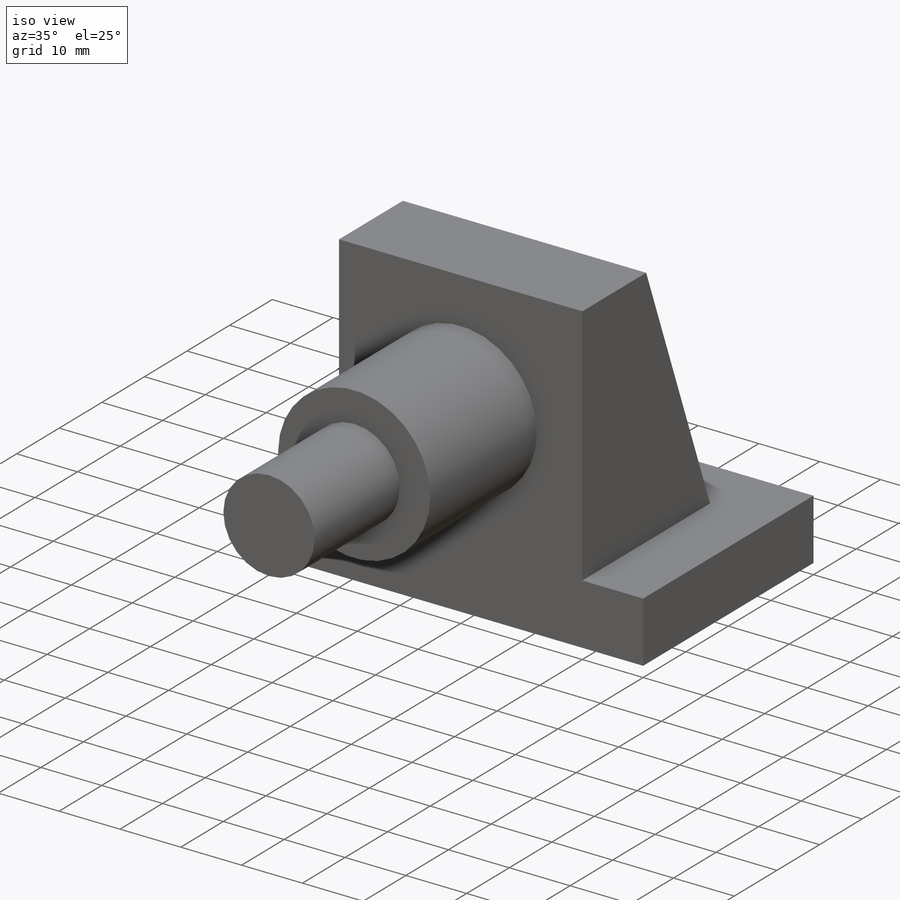
[diagram: iso view]
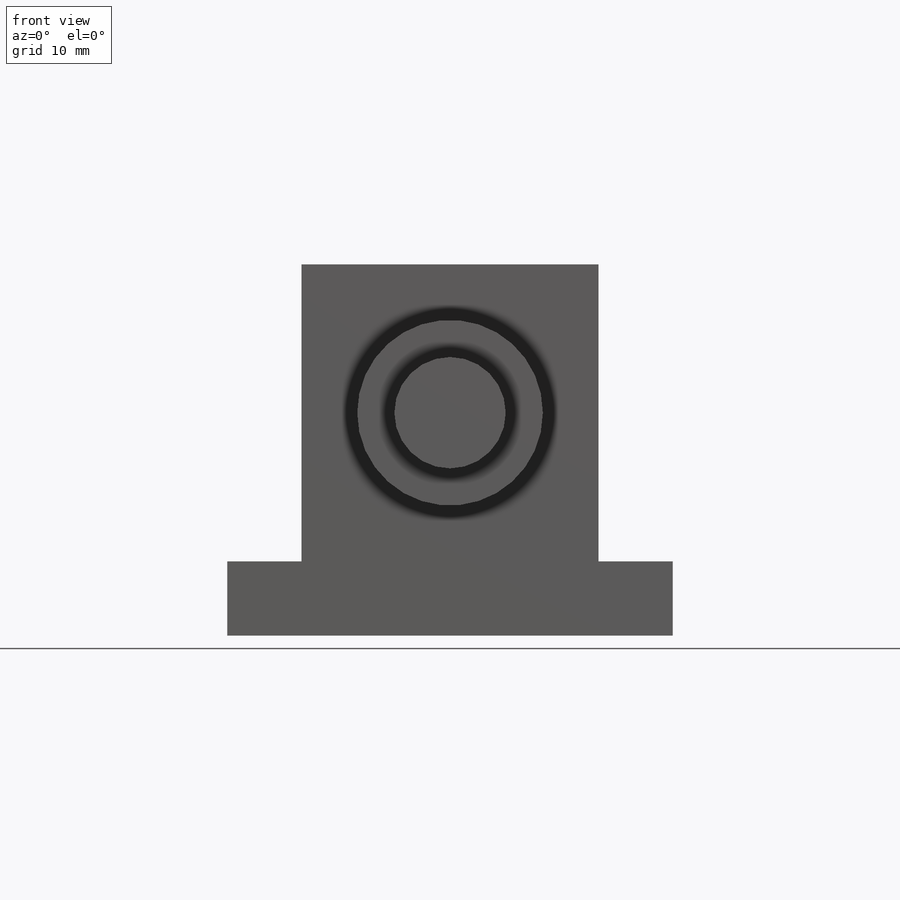
[diagram: front view]
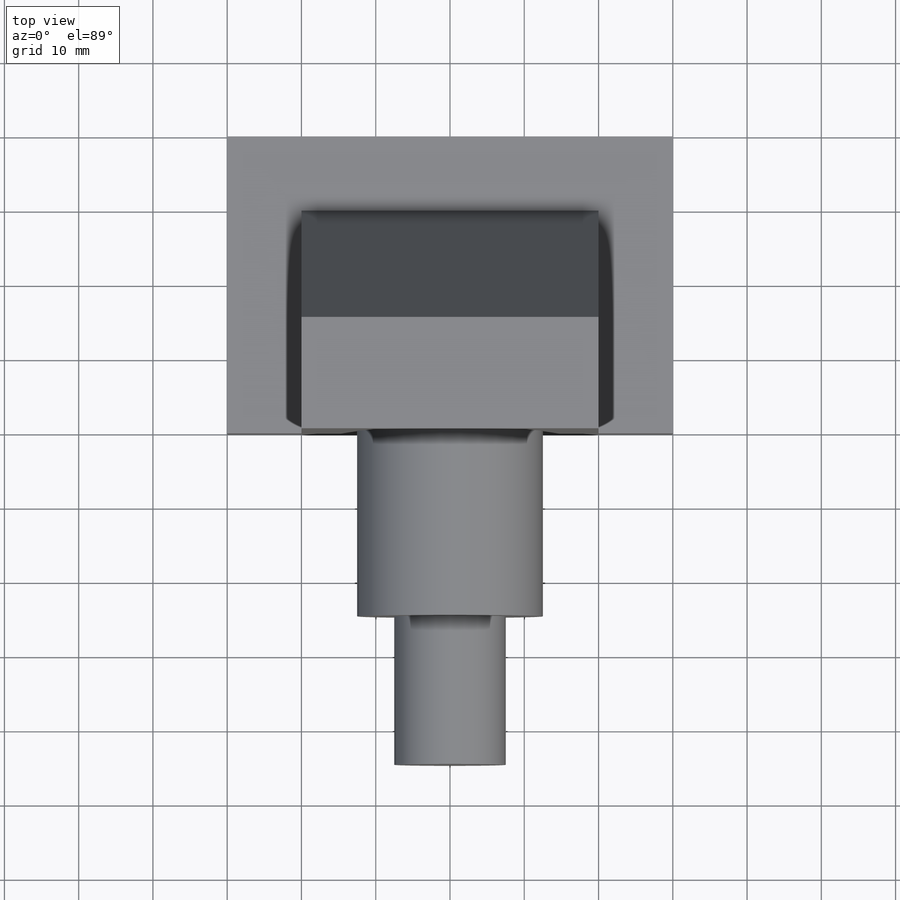
[diagram: top view]
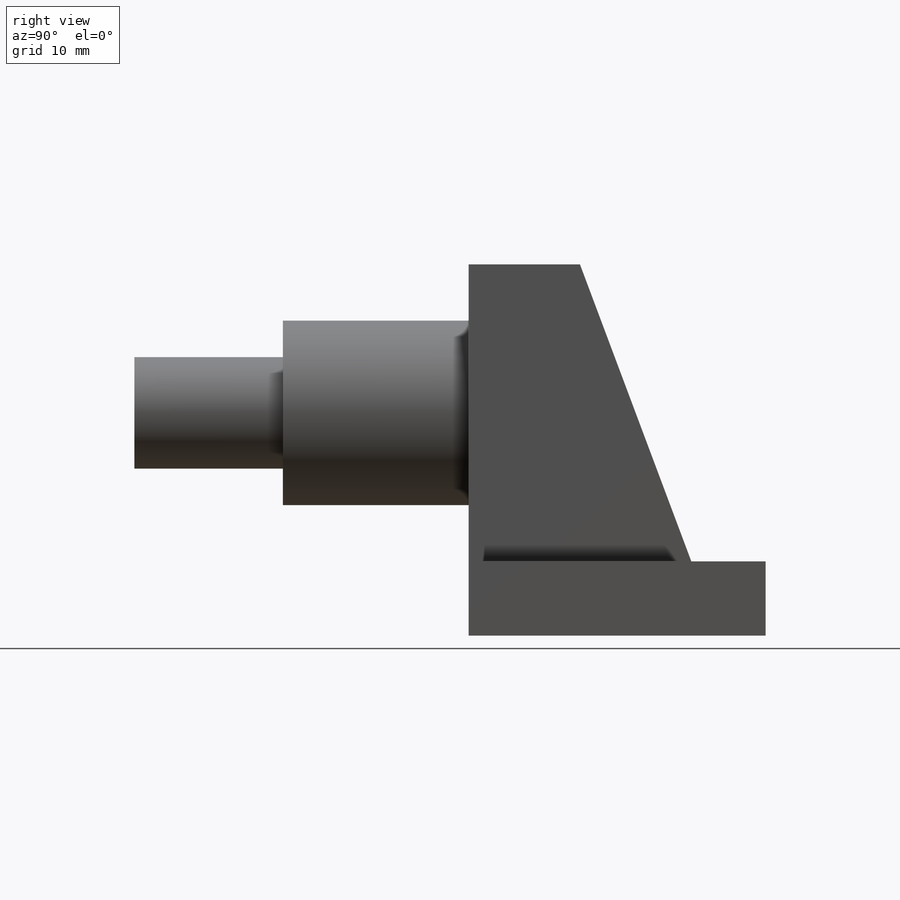
[diagram: right view]
SOLIDWORKS PART (.sldprt)
format: sldprt  version: not decoded by parser v0  size: 200,192 bytes
history: native  units: mm
features: sketch x4, plane x3, extrude x3, material x1, cut_extrude x1 (+9 scaffold rows collapsed)
feature tree (21):
  scaffold x9  (default folders/planes/origin — collapsed)
  material  "材质 <未指定>"
  plane  "前视基准面"
  plane  "上视基准面"
  plane  "右视基准面"
  sketch  "草图1"  dims[D1=40.0mm D2=40.0mm D3=10.0mm D4=60.0mm]
  extrude  "凸台-拉伸1"  Depth=40mm
  sketch  "草图2"  dims[D1=10.0mm D2=25.0mm]
  cut_extrude  "切除-拉伸1"  Depth=40mm
  sketch  "草图3"  dims[D1=25.0mm]
  extrude  "凸台-拉伸2"  Depth=25mm
  sketch  "草图4"  dims[D1=15.0mm]
  extrude  "凸台-拉伸3"  Depth=20mm
decode coverage: 8 of 8 modeling features carry decoded parameters
note: suppression state not decoded; provenance and decode notes live in map.json
